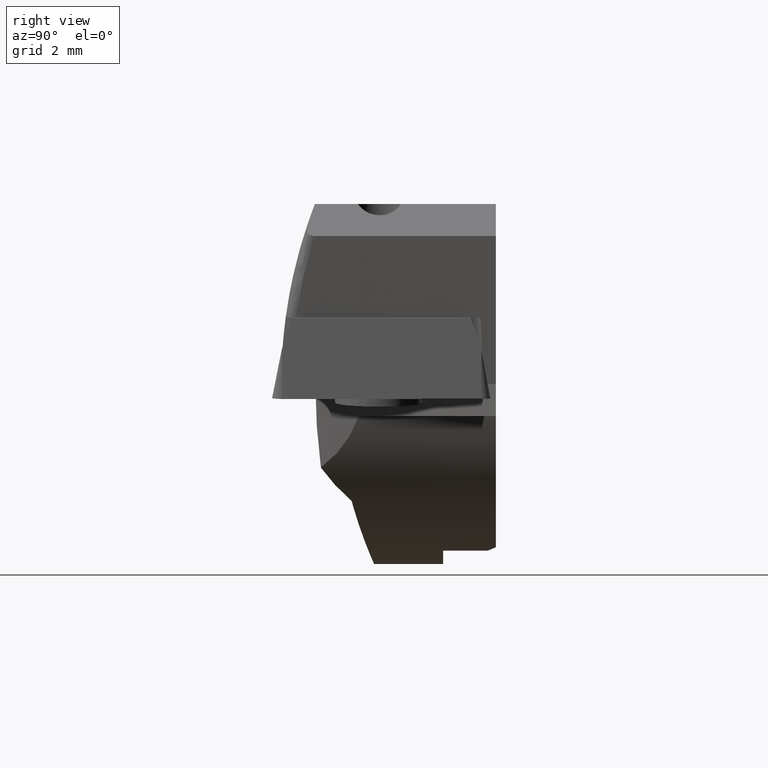
[diagram: clean part render]
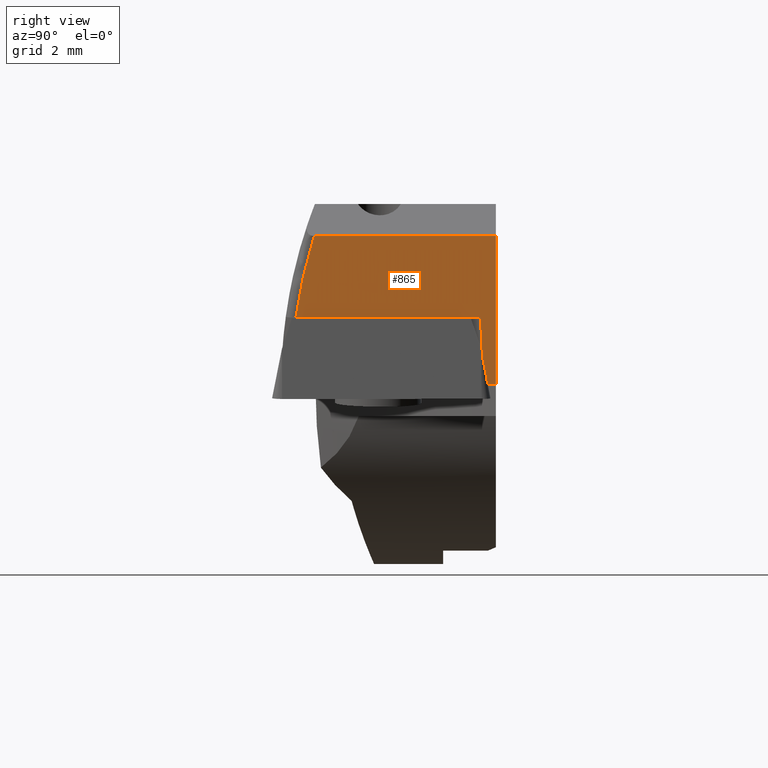
[diagram: same view with one face highlighted and labeled with its STEP entity id]
A machine part, right view. The second image highlights one B-rep face of the part: STEP entity #865.
In plain terms, the highlighted planar face has unit normal (0.9986, 0.0523, -0).
Its self-contained STEP definition (entity closure, byte-faithful):
#529=VERTEX_POINT('NONE',#1521);
#685=EDGE_CURVE('NONE',#1285,#1467,#1692,.T.);
#735=EDGE_CURVE('NONE',#1489,#837,#1744,.T.);
#737=EDGE_CURVE('NONE',#529,#907,#1746,.F.);
#795=VERTEX_POINT('NONE',#1808);
#827=EDGE_CURVE('NONE',#795,#1285,#1844,.F.);
#837=VERTEX_POINT('NONE',#1856);
#865=ADVANCED_FACE('NONE',(#1887),#1888,.T.);
#877=EDGE_CURVE('NONE',#907,#1489,#1900,.F.);
#907=VERTEX_POINT('NONE',#1932);
#1053=EDGE_CURVE('NONE',#795,#529,#2096,.T.);
#1285=VERTEX_POINT('NONE',#2353);
#1323=EDGE_CURVE('NONE',#837,#1467,#2402,.T.);
#1467=VERTEX_POINT('NONE',#2557);
#1489=VERTEX_POINT('NONE',#2580);
#1521=CARTESIAN_POINT('',(12.2933438010108,4.44089209850063E-016,4.625));
#1692=LINE('',#2980,#2981);
#1744=LINE('',#3088,#3089);
#1746=LINE('',#3092,#3093);
#1808=CARTESIAN_POINT('',(12.2933438010108,0.0,-1.50550041367259E-015));
#1844=LINE('',#3714,#3715);
#1856=CARTESIAN_POINT('',(12.318605031656,-0.482012994841275,2.07360994806664));
#1887=FACE_OUTER_BOUND('',#3771,.T.);
#1888=PLANE('',#3772);
#1900=B_SPLINE_CURVE_WITH_KNOTS('',3,(#3787,#3788,#3789,#3790),.UNSPECIFIED.,.F.,.F.,(4,4),(0.0,1.0),.UNSPECIFIED.);
#1932=CARTESIAN_POINT('',(12.5908390310342,-5.67654714802284,4.625));
#2096=LINE('',#4146,#4147);
#2353=CARTESIAN_POINT('',(12.3074230851777,-0.268648745653274,-1.63367606795049E-015));
#2402=LINE('',#4595,#4596);
#2557=CARTESIAN_POINT('',(12.3146396720551,-0.406349426280174,0.567880191751621));
#2580=CARTESIAN_POINT('',(12.6210368680579,-6.25275620394728,2.07360994806662));
#2980=CARTESIAN_POINT('',(12.3452689159675,-0.990790216013719,2.97812497943439));
#2981=VECTOR('',#5070,1.0);
#3088=CARTESIAN_POINT('',(12.5632319487041,-5.14977263653422,2.07360994806663));
#3089=VECTOR('',#5123,1.0);
#3092=CARTESIAN_POINT('',(12.645,-6.71,4.625));
#3093=VECTOR('',#5124,1.0);
#3714=CARTESIAN_POINT('',(12.7097223225938,-7.94497548415953,-1.68294351529059E-015));
#3715=VECTOR('',#5243,1.0);
#3771=EDGE_LOOP('',(#5306,#5307,#5308,#5309,#5310,#5311,#5312));
#3772=AXIS2_PLACEMENT_3D('',#5313,#5314,#5315);
#3787=CARTESIAN_POINT('',(12.6210368680579,-6.25275620394728,2.07360994806662));
#3788=CARTESIAN_POINT('',(12.6148198784213,-6.13412897490478,2.93847273859258));
#3789=CARTESIAN_POINT('',(12.6047016607567,-5.94106188061066,3.79317159184844));
#3790=CARTESIAN_POINT('',(12.5908390310342,-5.67654714802284,4.625));
#4146=CARTESIAN_POINT('',(12.2933438010108,0.0,2.8125));
#4147=VECTOR('',#5550,1.0);
#4595=CARTESIAN_POINT('',(12.3378936181254,-0.850061149777294,9.39788858285613));
#4596=VECTOR('',#5967,1.0);
#5070=DIRECTION('',(0.012349107077164,-0.235635000110786,0.971763163675793));
#5123=DIRECTION('',(-0.0523359562429373,0.998629534754574,3.0926373119997E-015));
#5124=DIRECTION('',(-0.0523359562429373,0.998629534754574,9.81307786677357E-018));
#5243=DIRECTION('',(-0.0523359562429373,0.998629534754574,6.40930612932291E-018));
#5306=ORIENTED_EDGE('',*,*,#737,.T.);
#5307=ORIENTED_EDGE('',*,*,#877,.T.);
#5308=ORIENTED_EDGE('',*,*,#735,.T.);
#5309=ORIENTED_EDGE('',*,*,#1323,.T.);
#5310=ORIENTED_EDGE('',*,*,#685,.F.);
#5311=ORIENTED_EDGE('',*,*,#827,.F.);
#5312=ORIENTED_EDGE('',*,*,#1053,.T.);
#5313=CARTESIAN_POINT('',(12.645,-6.71,5.625));
#5314=DIRECTION('',(0.998629534754574,0.0523359562429373,-1.2229684632712E-016));
#5315=DIRECTION('',(-0.0523359562429373,0.998629534754574,6.40930612932291E-018));
#5550=DIRECTION('',(1.22464679914735E-016,0.0,1.0));
#5967=DIRECTION('',(-0.00263018570957409,0.0501869330384965,-0.9987363785681));